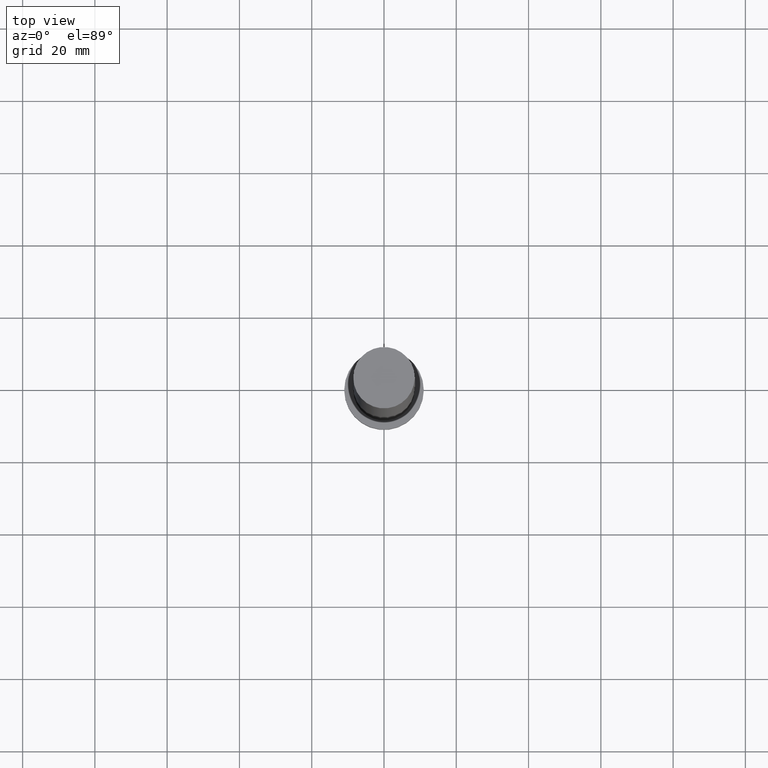
[diagram: clean part render]
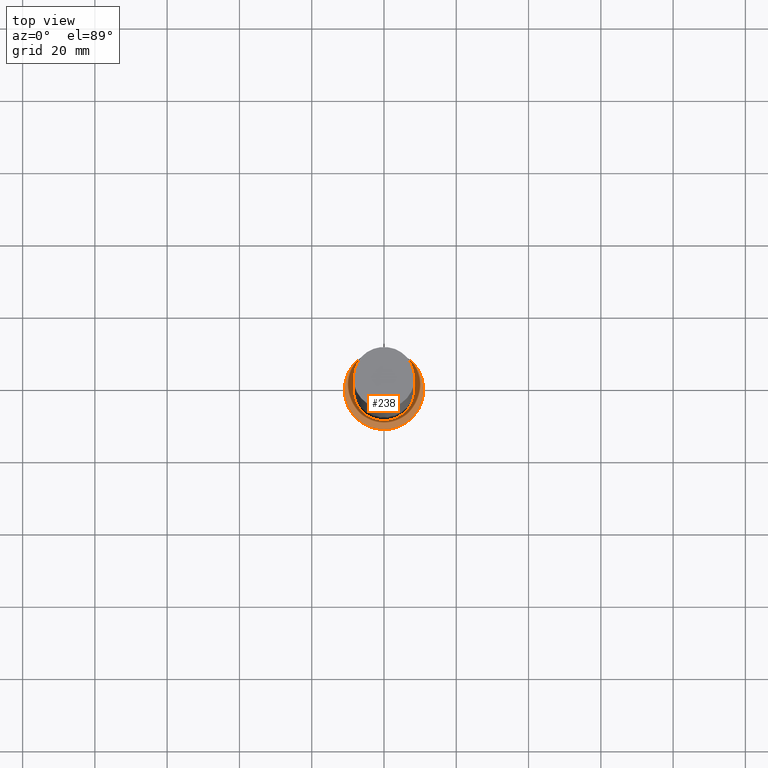
[diagram: same view with one face highlighted and labeled with its STEP entity id]
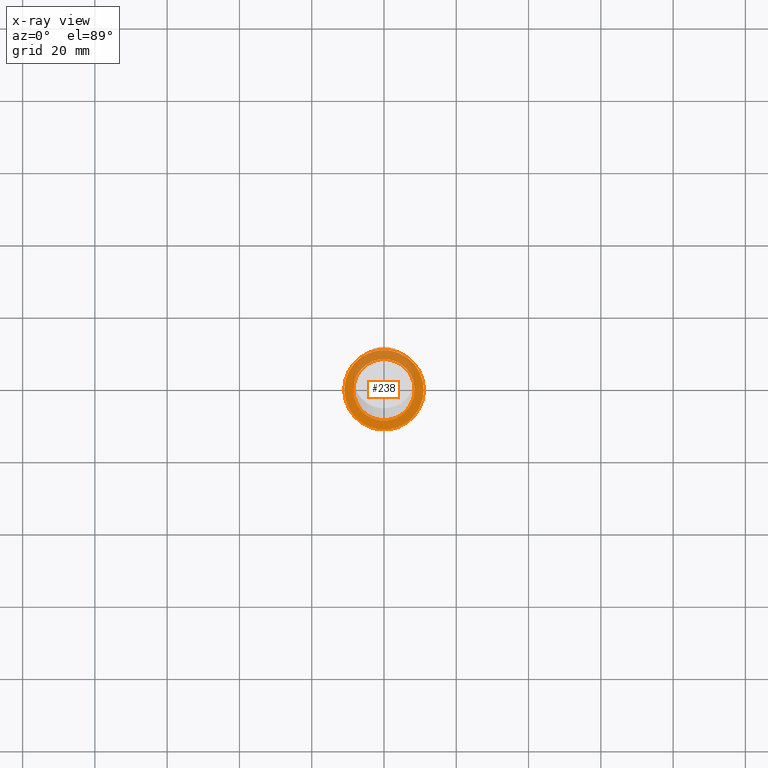
[diagram: x-ray of the same camera — body ghosted, the highlighted face saturated]
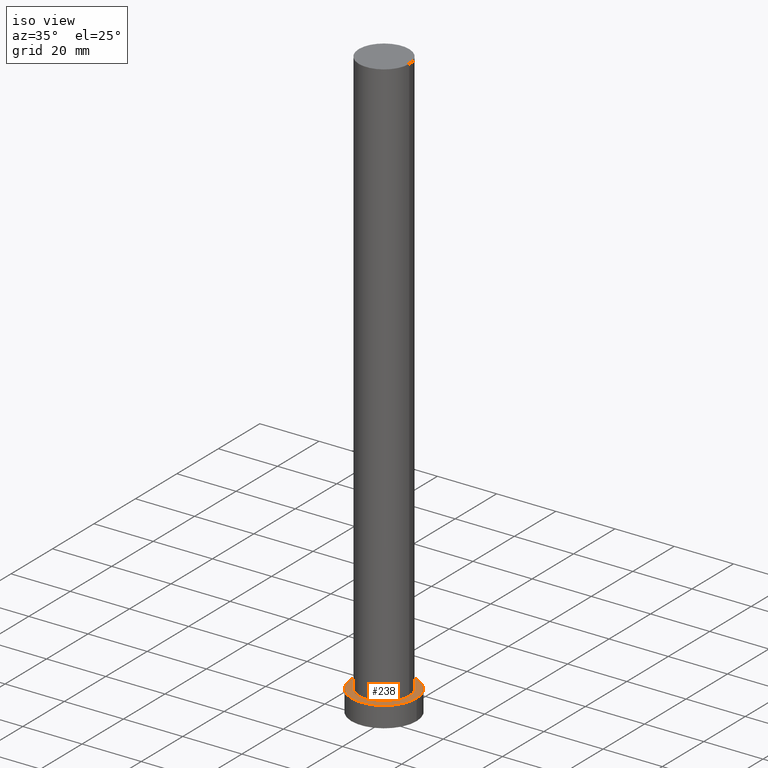
[diagram: same view with one face highlighted and labeled with its STEP entity id]
A machine part, top view. The second image highlights one B-rep face of the part: STEP entity #238.
The next image is the same camera in x-ray: the body ghosted, the highlighted face saturated — about 32% of this face is hidden behind the body in this view.
A second angle (iso view) of the same face is appended — the face is thin or edge-on in the first view.
In plain terms, the highlighted planar face has unit normal (0, 0, 1).
Its self-contained STEP definition (entity closure, byte-faithful):
#3 = CIRCLE ( 'NONE', #178, 8.500000000000000000 ) ;
#4 = ORIENTED_EDGE ( 'NONE', *, *, #33, .T. ) ;
#8 = CARTESIAN_POINT ( 'NONE',  ( -8.500000000000000000, 0.000000000000000000, 7.000000000000000000 ) ) ;
#15 = AXIS2_PLACEMENT_3D ( 'NONE', #242, #51, #159 ) ;
#24 = VERTEX_POINT ( 'NONE', #91 ) ;
#30 = ORIENTED_EDGE ( 'NONE', *, *, #200, .T. ) ;
#33 = EDGE_CURVE ( 'NONE', #24, #96, #231, .T. ) ;
#35 = CIRCLE ( 'NONE', #148, 11.00000000000000000 ) ;
#36 = VERTEX_POINT ( 'NONE', #92 ) ;
#41 = CIRCLE ( 'NONE', #216, 8.500000000000000000 ) ;
#51 = DIRECTION ( 'NONE',  ( 0.000000000000000000, 0.000000000000000000, 1.000000000000000000 ) ) ;
#57 = CARTESIAN_POINT ( 'NONE',  ( 0.000000000000000000, 0.000000000000000000, 7.000000000000000000 ) ) ;
#60 = CARTESIAN_POINT ( 'NONE',  ( 11.00000000000000000, 1.347111479062088405E-15, 7.000000000000000000 ) ) ;
#74 = AXIS2_PLACEMENT_3D ( 'NONE', #233, #210, #213 ) ;
#80 = FACE_BOUND ( 'NONE', #157, .T. ) ;
#91 = CARTESIAN_POINT ( 'NONE',  ( -11.00000000000000000, 0.000000000000000000, 7.000000000000000000 ) ) ;
#92 = CARTESIAN_POINT ( 'NONE',  ( 8.500000000000000000, 1.040949779275250140E-15, 7.000000000000000000 ) ) ;
#96 = VERTEX_POINT ( 'NONE', #60 ) ;
#99 = ORIENTED_EDGE ( 'NONE', *, *, #152, .F. ) ;
#123 = DIRECTION ( 'NONE',  ( 0.000000000000000000, 0.000000000000000000, 1.000000000000000000 ) ) ;
#132 = CARTESIAN_POINT ( 'NONE',  ( 0.000000000000000000, 0.000000000000000000, 7.000000000000000000 ) ) ;
#133 = EDGE_CURVE ( 'NONE', #198, #36, #41, .T. ) ;
#140 = EDGE_LOOP ( 'NONE', ( #4, #30 ) ) ;
#143 = ORIENTED_EDGE ( 'NONE', *, *, #133, .F. ) ;
#148 = AXIS2_PLACEMENT_3D ( 'NONE', #57, #123, #183 ) ;
#152 = EDGE_CURVE ( 'NONE', #36, #198, #3, .T. ) ;
#154 = DIRECTION ( 'NONE',  ( 1.000000000000000000, 0.000000000000000000, 0.000000000000000000 ) ) ;
#157 = EDGE_LOOP ( 'NONE', ( #143, #99 ) ) ;
#159 = DIRECTION ( 'NONE',  ( 1.000000000000000000, 0.000000000000000000, -0.000000000000000000 ) ) ;
#162 = FACE_OUTER_BOUND ( 'NONE', #140, .T. ) ;
#171 = DIRECTION ( 'NONE',  ( 0.000000000000000000, 0.000000000000000000, 1.000000000000000000 ) ) ;
#172 = DIRECTION ( 'NONE',  ( 0.000000000000000000, 0.000000000000000000, 1.000000000000000000 ) ) ;
#178 = AXIS2_PLACEMENT_3D ( 'NONE', #132, #171, #154 ) ;
#183 = DIRECTION ( 'NONE',  ( 1.000000000000000000, 0.000000000000000000, 0.000000000000000000 ) ) ;
#184 = PLANE ( 'NONE',  #15 ) ;
#194 = CARTESIAN_POINT ( 'NONE',  ( 0.000000000000000000, 0.000000000000000000, 7.000000000000000000 ) ) ;
#198 = VERTEX_POINT ( 'NONE', #8 ) ;
#200 = EDGE_CURVE ( 'NONE', #96, #24, #35, .T. ) ;
#210 = DIRECTION ( 'NONE',  ( 0.000000000000000000, 0.000000000000000000, 1.000000000000000000 ) ) ;
#213 = DIRECTION ( 'NONE',  ( 1.000000000000000000, 0.000000000000000000, 0.000000000000000000 ) ) ;
#216 = AXIS2_PLACEMENT_3D ( 'NONE', #194, #172, #235 ) ;
#231 = CIRCLE ( 'NONE', #74, 11.00000000000000000 ) ;
#233 = CARTESIAN_POINT ( 'NONE',  ( 0.000000000000000000, 0.000000000000000000, 7.000000000000000000 ) ) ;
#235 = DIRECTION ( 'NONE',  ( 1.000000000000000000, 0.000000000000000000, 0.000000000000000000 ) ) ;
#238 = ADVANCED_FACE ( 'NONE', ( #80, #162 ), #184, .T. ) ;
#242 = CARTESIAN_POINT ( 'NONE',  ( 0.000000000000000000, 0.000000000000000000, 7.000000000000000000 ) ) ;